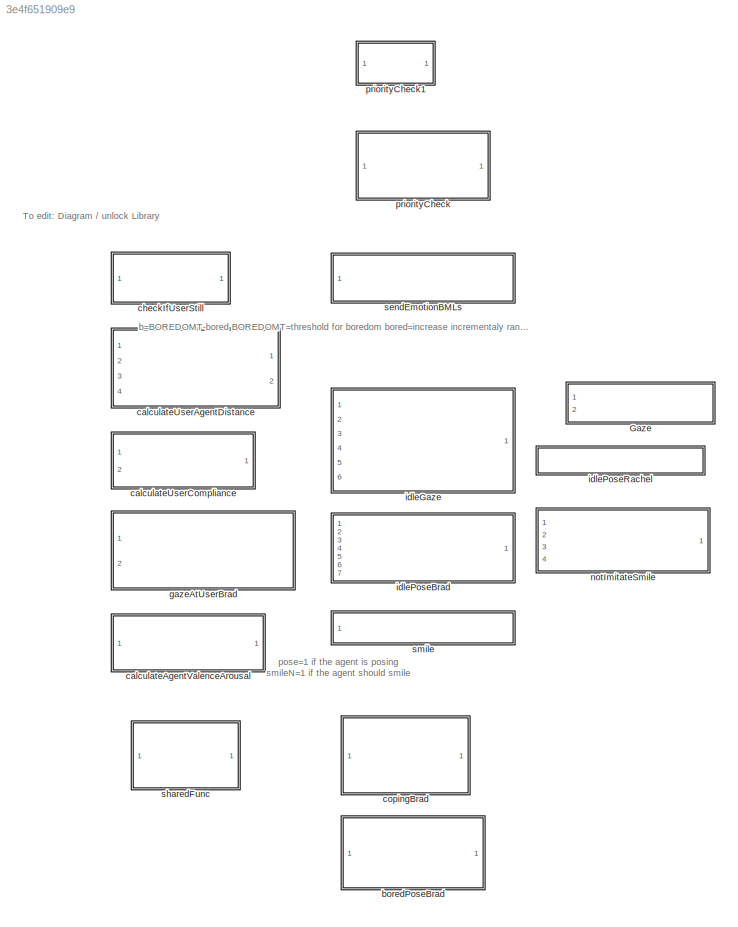
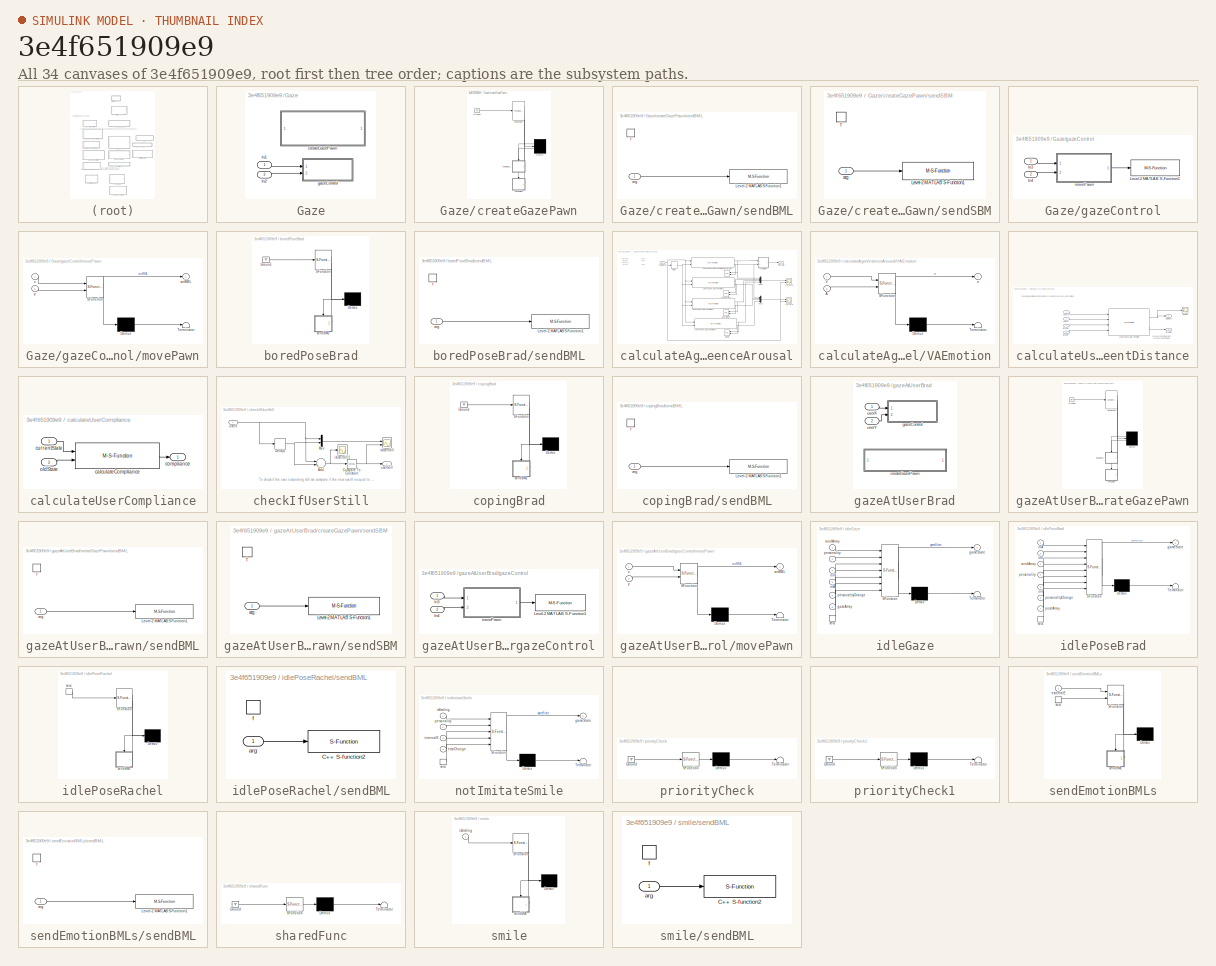
[diagram: thumbnail index - all 34 canvases of the model, root first then tree order]
MODEL slx_3e4f651909e9
KIND library
BLOCK [SubSystem] Gaze
  Ports = [2]
  RequestExecContextInheritance = off
BLOCK [Inport] Gaze/In1
  IconDisplay = Port number
BLOCK [Inport] Gaze/In2
  IconDisplay = Port number
  Port = 2
BLOCK [SubSystem] Gaze/createGazePawn
  ErrorFcn = Stateflow.Translate.translate
  PermitHierarchicalResolution = ExplicitOnly
  Ports = []
  RequestExecContextInheritance = off
  SFBlockType = Chart
  TreatAsAtomicUnit = on
BLOCK [Demux] Gaze/createGazePawn/ Demux 
  Outputs = 2
  Ports = [1, 2]
BLOCK [Ground] Gaze/createGazePawn/ Ground 
BLOCK [S-Function] Gaze/createGazePawn/ SFunction 
  EnableBusSupport = on
  FunctionName = sf_sfun
  PortCounts = [1 3]
  Ports = [1, 3]
  Tag = Stateflow S-Function lib_affectiveChar_behavior 13
BLOCK [SubSystem] Gaze/createGazePawn/sendBML
  Ports = [1, 0, 0, 1]
  PreDeleteFcn = Stateflow.SLINSF.SimulinkMan.removePreDeleteFcn
  RequestExecContextInheritance = off
  UndoDeleteFcn = Stateflow.SLINSF.SimulinkMan.restorePreDeleteFcn
BLOCK [M-S-Function] Gaze/createGazePawn/sendBML/Level-2 MATLAB S-Function1
  FunctionName = yarpSendText_sfun
  Parameters = '/sim/out/bml0', '/SB/in/bml'
  Ports = [1]
BLOCK [Inport] Gaze/createGazePawn/sendBML/arg
  IconDisplay = Port number
  OutDataTypeStr = double
  PortDimensions = [256 1]
  SignalType = real
  VarSizeSig = No
BLOCK [TriggerPort] Gaze/createGazePawn/sendBML/f
  CopyFcn = Stateflow.SLINSF.SimulinkMan.removeBlockPreDeleteFcn
  Ports = []
  PreDeleteFcn = Stateflow.SLINSF.SimulinkMan.unsafePredeleteFcn
  StatesWhenEnabling = held
  TriggerType = function-call
BLOCK [SubSystem] Gaze/createGazePawn/sendSBM
  Ports = [1, 0, 0, 1]
  PreDeleteFcn = Stateflow.SLINSF.SimulinkMan.removePreDeleteFcn
  RequestExecContextInheritance = off
  UndoDeleteFcn = Stateflow.SLINSF.SimulinkMan.restorePreDeleteFcn
BLOCK [M-S-Function] Gaze/createGazePawn/sendSBM/Level-2 MATLAB S-Function1
  FunctionName = yarpSendText_sfun
  Parameters = '/sim/out/smb0', '/SB/in/sbm'
  Ports = [1]
BLOCK [Inport] Gaze/createGazePawn/sendSBM/arg
  IconDisplay = Port number
  OutDataTypeStr = double
  PortDimensions = [256 1]
  SignalType = real
  VarSizeSig = No
BLOCK [TriggerPort] Gaze/createGazePawn/sendSBM/f
  CopyFcn = Stateflow.SLINSF.SimulinkMan.removeBlockPreDeleteFcn
  Ports = []
  PreDeleteFcn = Stateflow.SLINSF.SimulinkMan.unsafePredeleteFcn
  StatesWhenEnabling = held
  TriggerType = function-call
BLOCK [SubSystem] Gaze/gazeControl
  Ports = [2]
  RequestExecContextInheritance = off
BLOCK [Inport] Gaze/gazeControl/In3
  IconDisplay = Port number
BLOCK [Inport] Gaze/gazeControl/In4
  IconDisplay = Port number
  Port = 2
BLOCK [M-S-Function] Gaze/gazeControl/Level-2 MATLAB S-Function1
  FunctionName = yarpSendText_sfun
  Parameters = '/sim/out/smb1', '/SB/in/sbm'
  Ports = [1]
BLOCK [SubSystem] Gaze/gazeControl/movePawn
  ErrorFcn = Stateflow.Translate.translate
  PermitHierarchicalResolution = ExplicitOnly
  Ports = [2, 1]
  RequestExecContextInheritance = off
  SFBlockType = MATLAB Function
  TreatAsAtomicUnit = on
BLOCK [Demux] Gaze/gazeControl/movePawn/ Demux 
  Outputs = 1
  Ports = [1, 1]
BLOCK [S-Function] Gaze/gazeControl/movePawn/ SFunction 
  EnableBusSupport = on
  FunctionName = sf_sfun
  PortCounts = [2 2]
  Ports = [2, 2]
  Tag = Stateflow S-Function lib_affectiveChar_behavior 14
BLOCK [Terminator] Gaze/gazeControl/movePawn/ Terminator 
BLOCK [Outport] Gaze/gazeControl/movePawn/arrBML
  IconDisplay = Port number
BLOCK [Inport] Gaze/gazeControl/movePawn/x
  IconDisplay = Port number
BLOCK [Inport] Gaze/gazeControl/movePawn/y
  IconDisplay = Port number
  Port = 2
BLOCK [SubSystem] boredPoseBrad
  ErrorFcn = Stateflow.Translate.translate
  PermitHierarchicalResolution = ExplicitOnly
  Ports = []
  RequestExecContextInheritance = off
  SFBlockType = Chart
  TreatAsAtomicUnit = on
BLOCK [Demux] boredPoseBrad/ Demux 
  Outputs = 1
  Ports = [1, 1]
BLOCK [Ground] boredPoseBrad/ Ground 
BLOCK [S-Function] boredPoseBrad/ SFunction 
  EnableBusSupport = off
  FunctionName = sf_sfun
  PortCounts = [1 2]
  Ports = [1, 2]
  Tag = Stateflow S-Function lib_affectiveChar_behavior 2
BLOCK [SubSystem] boredPoseBrad/sendBML
  Ports = [1, 0, 0, 1]
  PreDeleteFcn = Stateflow.SLINSF.SimulinkMan.removePreDeleteFcn
  RequestExecContextInheritance = off
  UndoDeleteFcn = Stateflow.SLINSF.SimulinkMan.restorePreDeleteFcn
BLOCK [M-S-Function] boredPoseBrad/sendBML/Level-2 MATLAB S-Function1
  FunctionName = yarpSendText_sfun
  Parameters = '/sim/out/bml3', '/SB/in/bml'
  Ports = [1]
BLOCK [Inport] boredPoseBrad/sendBML/arg
  IconDisplay = Port number
  OutDataTypeStr = double
  PortDimensions = [256 1]
  SignalType = real
  VarSizeSig = No
BLOCK [TriggerPort] boredPoseBrad/sendBML/f
  CopyFcn = Stateflow.SLINSF.SimulinkMan.removeBlockPreDeleteFcn
  Ports = []
  PreDeleteFcn = Stateflow.SLINSF.SimulinkMan.unsafePredeleteFcn
  StatesWhenEnabling = held
  TriggerType = function-call
BLOCK [SubSystem] calculateAgentValenceArousal
  Ports = [1, 1]
  RequestExecContextInheritance = off
BLOCK [Scope] calculateAgentValenceArousal/A_E-I-N-S
  Floating = off
  NumInputPorts = 2
  Ports = [2]
  SaveName = ScopeData11
  ShowLegends = off
  YMax = 5~5
  YMin = -5~-5
BLOCK [Delay] calculateAgentValenceArousal/Delay
  DelayLength = 1
  InputPortMap = u0
  Ports = [1, 1]
  SampleTime = 1
BLOCK [Reference] calculateAgentValenceArousal/Extraversion  REF=simulink/Sinks/XY Graph
  Ports = [2]
  SourceBlock = simulink/Sinks/XY Graph
  SourceType = XY scope.
  st = -1
  xmax = 20
  xmin = -20
  ymax = 20
  ymin = -20
BLOCK [Reference] calculateAgentValenceArousal/Introversion  REF=simulink/Sinks/XY Graph
  Ports = [2]
  SourceBlock = simulink/Sinks/XY Graph
  SourceType = XY scope.
  st = -1
  xmax = 20
  xmin = -20
  ymax = 20
  ymin = -20
BLOCK [M-S-Function] calculateAgentValenceArousal/Level-2 MATLAB S-Function
  FunctionName = calculateVA_Extraversion_sfun
  Ports = [2, 2]
BLOCK [M-S-Function] calculateAgentValenceArousal/Level-2 MATLAB S-Function1
  FunctionName = calculateVA_Introversion_sfun
  Ports = [2, 2]
BLOCK [M-S-Function] calculateAgentValenceArousal/Level-2 MATLAB S-Function2
  FunctionName = calculateVA_Neuroticism_sfun
  Ports = [2, 2]
BLOCK [M-S-Function] calculateAgentValenceArousal/Level-2 MATLAB S-Function3
  FunctionName = calculateVA_Stable_sfun
  Ports = [2, 2]
BLOCK [Mux] calculateAgentValenceArousal/Mux1
  DisplayOption = bar
  Ports = [4, 1]
BLOCK [Mux] calculateAgentValenceArousal/Mux6
  DisplayOption = bar
  Ports = [4, 1]
BLOCK [Reference] calculateAgentValenceArousal/Neuroticism  REF=simulink/Sinks/XY Graph
  Ports = [2]
  SourceBlock = simulink/Sinks/XY Graph
  SourceType = XY scope.
  st = -1
  xmax = 20
  xmin = -20
  ymax = 20
  ymin = -20
BLOCK [Reference] calculateAgentValenceArousal/Stable  REF=simulink/Sinks/XY Graph
  Ports = [2]
  SourceBlock = simulink/Sinks/XY Graph
  SourceType = XY scope.
  st = -1
  xmax = 20
  xmin = -20
  ymax = 20
  ymin = -20
BLOCK [SubSystem] calculateAgentValenceArousal/VAEmotion
  ErrorFcn = Stateflow.Translate.translate
  PermitHierarchicalResolution = ExplicitOnly
  Ports = [2, 1]
  RequestExecContextInheritance = off
  SFBlockType = Truth Table
  ShowPortLabels = SignalName
  TreatAsAtomicUnit = on
BLOCK [Demux] calculateAgentValenceArousal/VAEmotion/ Demux 
  Outputs = 1
  Ports = [1, 1]
BLOCK [S-Function] calculateAgentValenceArousal/VAEmotion/ SFunction 
  EnableBusSupport = off
  FunctionName = sf_sfun
  PortCounts = [2 2]
  Ports = [2, 2]
  Tag = Stateflow S-Function lib_affectiveChar_behavior 8
BLOCK [Terminator] calculateAgentValenceArousal/VAEmotion/ Terminator 
BLOCK [Inport] calculateAgentValenceArousal/VAEmotion/A
  IconDisplay = Port number
  Port = 2
BLOCK [Inport] calculateAgentValenceArousal/VAEmotion/V
  IconDisplay = Port number
BLOCK [Outport] calculateAgentValenceArousal/VAEmotion/e
  IconDisplay = Port number
BLOCK [Scope] calculateAgentValenceArousal/V_E-I-N-S
  Floating = off
  NumInputPorts = 2
  Ports = [2]
  SaveName = ScopeData6
  ShowLegends = off
  YMax = 5~5
  YMin = -5~-5
BLOCK [Inport] calculateAgentValenceArousal/compliance
  IconDisplay = Port number
  OutDataTypeStr = double
  PortDimensions = 1
  SignalType = real
  VarSizeSig = No
BLOCK [Outport] calculateAgentValenceArousal/internalE
  IconDisplay = Port number
BLOCK [SubSystem] calculateUserAgentDistance
  Ports = [4, 2]
  RequestExecContextInheritance = off
BLOCK [M-S-Function] calculateUserAgentDistance/Level-2 MATLAB S-Function
  FunctionName = calculateDistance_sfun
  Ports = [4, 2]
BLOCK [Scope] calculateUserAgentDistance/Scope
  Floating = off
  NumInputPorts = 1
  Ports = [1]
  SaveName = ScopeData5
  ShowLegends = off
BLOCK [Outport] calculateUserAgentDistance/direction
  IconDisplay = Port number
  Port = 2
BLOCK [Outport] calculateUserAgentDistance/distance
  IconDisplay = Port number
BLOCK [Inport] calculateUserAgentDistance/targetX
  IconDisplay = Port number
  Port = 3
BLOCK [Inport] calculateUserAgentDistance/targetY
  IconDisplay = Port number
  Port = 4
BLOCK [Inport] calculateUserAgentDistance/userX
  IconDisplay = Port number
BLOCK [Inport] calculateUserAgentDistance/userY
  IconDisplay = Port number
  Port = 2
BLOCK [SubSystem] calculateUserCompliance
  Ports = [2, 1]
  RequestExecContextInheritance = off
BLOCK [M-S-Function] calculateUserCompliance/calculateCompliance
  FunctionName = calculateUserCompliance
  Ports = [2, 1]
BLOCK [Outport] calculateUserCompliance/compliance
  IconDisplay = Port number
BLOCK [Inport] calculateUserCompliance/currentState
  IconDisplay = Port number
BLOCK [Inport] calculateUserCompliance/oldState
  IconDisplay = Port number
  Port = 2
BLOCK [SubSystem] checkIfUserStill
  Ports = [1, 1]
  RequestExecContextInheritance = off
BLOCK [Sum] checkIfUserStill/Add
  InputSameDT = off
  Inputs = -+
  OutDataTypeStr = Inherit: Inherit via internal rule
  Ports = [2, 1]
  SaturateOnIntegerOverflow = off
BLOCK [Reference] checkIfUserStill/Compare To Constant  REF=simulink/Logic and Bit
Operations/Compare
To Constant
  OutDataTypeStr = boolean
  Ports = [1, 1]
  SourceBlock = simulink/Logic and Bit\nOperations/Compare\nTo Constant
  SourceType = Compare To Constant
  ZeroCross = on
  const = 0
  relop = ==
BLOCK [Delay] checkIfUserStill/Delay1
  InputPortMap = u0
  Ports = [1, 1]
BLOCK [Mux] checkIfUserStill/Mux
  DisplayOption = bar
  Inputs = 2
  Ports = [2, 1]
BLOCK [Scope] checkIfUserStill/isUserStill
  Floating = off
  NumInputPorts = 2
  Ports = [2]
  SaveName = ScopeData4
  ShowLegends = off
  TimeRange = 60
  YMax = 60~1
  YMin = 0~0
BLOCK [Scope] checkIfUserStill/isUserStill1
  Floating = off
  NumInputPorts = 1
  Ports = [1]
  ShowLegends = off
  TimeRange = 60
  YMax = 60
  YMin = 0
BLOCK [Outport] checkIfUserStill/userStill
  IconDisplay = Port number
BLOCK [Inport] checkIfUserStill/userX
  IconDisplay = Port number
BLOCK [SubSystem] copingBrad
  ErrorFcn = Stateflow.Translate.translate
  PermitHierarchicalResolution = ExplicitOnly
  Ports = []
  RequestExecContextInheritance = off
  SFBlockType = Chart
  TreatAsAtomicUnit = on
BLOCK [Demux] copingBrad/ Demux 
  Outputs = 1
  Ports = [1, 1]
BLOCK [Ground] copingBrad/ Ground 
BLOCK [S-Function] copingBrad/ SFunction 
  EnableBusSupport = off
  FunctionName = sf_sfun
  PortCounts = [1 2]
  Ports = [1, 2]
  Tag = Stateflow S-Function lib_affectiveChar_behavior 7
BLOCK [SubSystem] copingBrad/sendBML
  Ports = [1, 0, 0, 1]
  PreDeleteFcn = Stateflow.SLINSF.SimulinkMan.removePreDeleteFcn
  RequestExecContextInheritance = off
  UndoDeleteFcn = Stateflow.SLINSF.SimulinkMan.restorePreDeleteFcn
BLOCK [M-S-Function] copingBrad/sendBML/Level-2 MATLAB S-Function1
  FunctionName = yarpSendText_sfun
  Parameters = '/sim/out/bml1', '/SB/in/bml'
  Ports = [1]
BLOCK [Inport] copingBrad/sendBML/arg
  IconDisplay = Port number
  OutDataTypeStr = double
  PortDimensions = [256 1]
  SignalType = real
  VarSizeSig = No
BLOCK [TriggerPort] copingBrad/sendBML/f
  CopyFcn = Stateflow.SLINSF.SimulinkMan.removeBlockPreDeleteFcn
  Ports = []
  PreDeleteFcn = Stateflow.SLINSF.SimulinkMan.unsafePredeleteFcn
  StatesWhenEnabling = held
  TriggerType = function-call
BLOCK [SubSystem] gazeAtUserBrad
  Ports = [2]
  RequestExecContextInheritance = off
BLOCK [SubSystem] gazeAtUserBrad/createGazePawn
  ErrorFcn = Stateflow.Translate.translate
  PermitHierarchicalResolution = ExplicitOnly
  Ports = []
  RequestExecContextInheritance = off
  SFBlockType = Chart
  TreatAsAtomicUnit = on
BLOCK [Demux] gazeAtUserBrad/createGazePawn/ Demux 
  Outputs = 2
  Ports = [1, 2]
BLOCK [Ground] gazeAtUserBrad/createGazePawn/ Ground 
BLOCK [S-Function] gazeAtUserBrad/createGazePawn/ SFunction 
  EnableBusSupport = off
  FunctionName = sf_sfun
  PortCounts = [1 3]
  Ports = [1, 3]
  Tag = Stateflow S-Function lib_affectiveChar_behavior 3
BLOCK [SubSystem] gazeAtUserBrad/createGazePawn/sendBML
  Ports = [1, 0, 0, 1]
  PreDeleteFcn = Stateflow.SLINSF.SimulinkMan.removePreDeleteFcn
  RequestExecContextInheritance = off
  UndoDeleteFcn = Stateflow.SLINSF.SimulinkMan.restorePreDeleteFcn
BLOCK [M-S-Function] gazeAtUserBrad/createGazePawn/sendBML/Level-2 MATLAB S-Function1
  FunctionName = yarpSendText_sfun
  Parameters = '/sim/out/bml', '/SB/in/bml'
  Ports = [1]
BLOCK [Inport] gazeAtUserBrad/createGazePawn/sendBML/arg
  IconDisplay = Port number
  OutDataTypeStr = double
  PortDimensions = [256 1]
  SignalType = real
  VarSizeSig = No
BLOCK [TriggerPort] gazeAtUserBrad/createGazePawn/sendBML/f
  CopyFcn = Stateflow.SLINSF.SimulinkMan.removeBlockPreDeleteFcn
  Ports = []
  PreDeleteFcn = Stateflow.SLINSF.SimulinkMan.unsafePredeleteFcn
  StatesWhenEnabling = held
  TriggerType = function-call
BLOCK [SubSystem] gazeAtUserBrad/createGazePawn/sendSBM
  Ports = [1, 0, 0, 1]
  PreDeleteFcn = Stateflow.SLINSF.SimulinkMan.removePreDeleteFcn
  RequestExecContextInheritance = off
  UndoDeleteFcn = Stateflow.SLINSF.SimulinkMan.restorePreDeleteFcn
BLOCK [M-S-Function] gazeAtUserBrad/createGazePawn/sendSBM/Level-2 MATLAB S-Function1
  FunctionName = yarpSendText_sfun
  Parameters = '/sim/out/smb0', '/SB/in/sbm'
  Ports = [1]
BLOCK [Inport] gazeAtUserBrad/createGazePawn/sendSBM/arg
  IconDisplay = Port number
  OutDataTypeStr = double
  PortDimensions = [256 1]
  SignalType = real
  VarSizeSig = No
BLOCK [TriggerPort] gazeAtUserBrad/createGazePawn/sendSBM/f
  CopyFcn = Stateflow.SLINSF.SimulinkMan.removeBlockPreDeleteFcn
  Ports = []
  PreDeleteFcn = Stateflow.SLINSF.SimulinkMan.unsafePredeleteFcn
  StatesWhenEnabling = held
  TriggerType = function-call
BLOCK [SubSystem] gazeAtUserBrad/gazeControl
  Ports = [2]
  RequestExecContextInheritance = off
BLOCK [Inport] gazeAtUserBrad/gazeControl/In3
  IconDisplay = Port number
BLOCK [Inport] gazeAtUserBrad/gazeControl/In4
  IconDisplay = Port number
  Port = 2
BLOCK [M-S-Function] gazeAtUserBrad/gazeControl/Level-2 MATLAB S-Function1
  FunctionName = yarpSendText_sfun
  Parameters = '/sim/out/smb', '/SB/in/sbm'
  Ports = [1]
BLOCK [SubSystem] gazeAtUserBrad/gazeControl/movePawn
  ErrorFcn = Stateflow.Translate.translate
  PermitHierarchicalResolution = ExplicitOnly
  Ports = [2, 1]
  RequestExecContextInheritance = off
  SFBlockType = MATLAB Function
  TreatAsAtomicUnit = on
BLOCK [Demux] gazeAtUserBrad/gazeControl/movePawn/ Demux 
  Outputs = 1
  Ports = [1, 1]
BLOCK [S-Function] gazeAtUserBrad/gazeControl/movePawn/ SFunction 
  EnableBusSupport = off
  FunctionName = sf_sfun
  PortCounts = [2 2]
  Ports = [2, 2]
  Tag = Stateflow S-Function lib_affectiveChar_behavior 6
BLOCK [Terminator] gazeAtUserBrad/gazeControl/movePawn/ Terminator 
BLOCK [Outport] gazeAtUserBrad/gazeControl/movePawn/arrBML
  IconDisplay = Port number
BLOCK [Inport] gazeAtUserBrad/gazeControl/movePawn/x
  IconDisplay = Port number
BLOCK [Inport] gazeAtUserBrad/gazeControl/movePawn/y
  IconDisplay = Port number
  Port = 2
BLOCK [Inport] gazeAtUserBrad/userX
  IconDisplay = Port number
BLOCK [Inport] gazeAtUserBrad/userY
  IconDisplay = Port number
  Port = 2
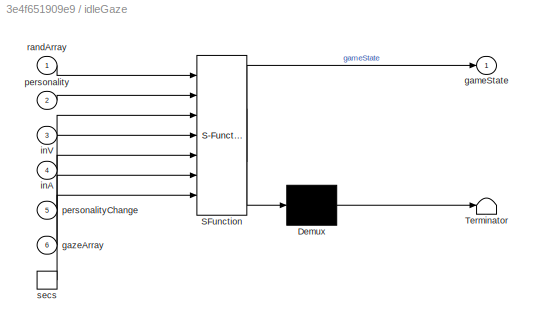
BLOCK [SubSystem] idleGaze
  ErrorFcn = Stateflow.Translate.translate
  PermitHierarchicalResolution = ExplicitOnly
  Ports = [6, 1, 0, 1]
  RequestExecContextInheritance = off
  SFBlockType = Chart
  TreatAsAtomicUnit = on
BLOCK [Demux] idleGaze/ Demux 
  Outputs = 1
  Ports = [1, 1]
BLOCK [S-Function] idleGaze/ SFunction 
  EnableBusSupport = off
  FunctionName = sf_sfun
  PortCounts = [7 2]
  Ports = [7, 2]
  Tag = Stateflow S-Function lib_affectiveChar_behavior 9
BLOCK [Terminator] idleGaze/ Terminator 
BLOCK [Outport] idleGaze/gameState
  IconDisplay = Port number
BLOCK [Inport] idleGaze/gazeArray
  IconDisplay = Port number
  Port = 6
BLOCK [Inport] idleGaze/inA
  IconDisplay = Port number
  Port = 4
BLOCK [Inport] idleGaze/inV
  IconDisplay = Port number
  Port = 3
BLOCK [Inport] idleGaze/personality
  IconDisplay = Port number
  Port = 2
BLOCK [Inport] idleGaze/personalityChange
  IconDisplay = Port number
  Port = 5
BLOCK [Inport] idleGaze/randArray
  IconDisplay = Port number
BLOCK [TriggerPort] idleGaze/secs
  Ports = [0, 1]
  ShowOutputPort = on
  StatesWhenEnabling = held
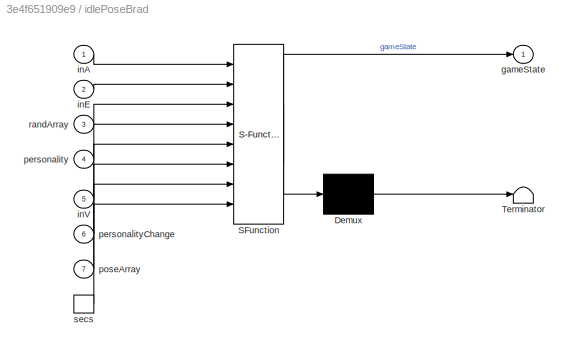
BLOCK [SubSystem] idlePoseBrad
  ErrorFcn = Stateflow.Translate.translate
  PermitHierarchicalResolution = ExplicitOnly
  Ports = [7, 1, 0, 1]
  RequestExecContextInheritance = off
  SFBlockType = Chart
  TreatAsAtomicUnit = on
BLOCK [Demux] idlePoseBrad/ Demux 
  Outputs = 1
  Ports = [1, 1]
BLOCK [S-Function] idlePoseBrad/ SFunction 
  EnableBusSupport = off
  FunctionName = sf_sfun
  PortCounts = [8 2]
  Ports = [8, 2]
  Tag = Stateflow S-Function lib_affectiveChar_behavior 1
BLOCK [Terminator] idlePoseBrad/ Terminator 
BLOCK [Outport] idlePoseBrad/gameState
  IconDisplay = Port number
BLOCK [Inport] idlePoseBrad/inA
  IconDisplay = Port number
BLOCK [Inport] idlePoseBrad/inE
  IconDisplay = Port number
  Port = 2
BLOCK [Inport] idlePoseBrad/inV
  IconDisplay = Port number
  Port = 5
BLOCK [Inport] idlePoseBrad/personality
  IconDisplay = Port number
  Port = 4
BLOCK [Inport] idlePoseBrad/personalityChange
  IconDisplay = Port number
  Port = 6
BLOCK [Inport] idlePoseBrad/poseArray
  IconDisplay = Port number
  Port = 7
BLOCK [Inport] idlePoseBrad/randArray
  IconDisplay = Port number
  Port = 3
BLOCK [TriggerPort] idlePoseBrad/secs
  Ports = [0, 1]
  ShowOutputPort = on
  StatesWhenEnabling = held
BLOCK [SubSystem] idlePoseRachel
  ErrorFcn = Stateflow.Translate.translate
  PermitHierarchicalResolution = ExplicitOnly
  Ports = [0, 0, 0, 1]
  RequestExecContextInheritance = off
  SFBlockType = Chart
  TreatAsAtomicUnit = on
BLOCK [Demux] idlePoseRachel/ Demux 
  Outputs = 1
  Ports = [1, 1]
BLOCK [S-Function] idlePoseRachel/ SFunction 
  EnableBusSupport = off
  FunctionName = sf_sfun
  PortCounts = [1 2]
  Ports = [1, 2]
  Tag = Stateflow S-Function lib_affectiveChar_behavior 10
BLOCK [TriggerPort] idlePoseRachel/secs
  Ports = [0, 1]
  ShowOutputPort = on
  StatesWhenEnabling = held
BLOCK [SubSystem] idlePoseRachel/sendBML
  Ports = [1, 0, 0, 1]
  PreDeleteFcn = Stateflow.SLINSF.SimulinkMan.removePreDeleteFcn
  RequestExecContextInheritance = off
  UndoDeleteFcn = Stateflow.SLINSF.SimulinkMan.restorePreDeleteFcn
BLOCK [S-Function] idlePoseRachel/sendBML/C++ S-function2
  EnableBusSupport = off
  FunctionName = yarpSendText_sfun
  Parameters = '/sim/out/bml2', '/SB/in/bml'
  Ports = [1]
BLOCK [Inport] idlePoseRachel/sendBML/arg
  IconDisplay = Port number
  OutDataTypeStr = double
  PortDimensions = [256 1]
  SignalType = real
  VarSizeSig = No
BLOCK [TriggerPort] idlePoseRachel/sendBML/f
  CopyFcn = Stateflow.SLINSF.SimulinkMan.removeBlockPreDeleteFcn
  Ports = []
  PreDeleteFcn = Stateflow.SLINSF.SimulinkMan.unsafePredeleteFcn
  StatesWhenEnabling = held
  TriggerType = function-call
BLOCK [SubSystem] notImitateSmile
  ErrorFcn = Stateflow.Translate.translate
  PermitHierarchicalResolution = ExplicitOnly
  Ports = [4, 1, 0, 1]
  RequestExecContextInheritance = off
  SFBlockType = Chart
  TreatAsAtomicUnit = on
BLOCK [Demux] notImitateSmile/ Demux 
  Outputs = 1
  Ports = [1, 1]
BLOCK [S-Function] notImitateSmile/ SFunction 
  EnableBusSupport = off
  FunctionName = sf_sfun
  PortCounts = [5 2]
  Ports = [5, 2]
  Tag = Stateflow S-Function lib_affectiveChar_behavior 11
BLOCK [Terminator] notImitateSmile/ Terminator 
BLOCK [Inport] notImitateSmile/emoChange
  IconDisplay = Port number
  Port = 4
BLOCK [Outport] notImitateSmile/gameState
  IconDisplay = Port number
BLOCK [Inport] notImitateSmile/internalE
  IconDisplay = Port number
  Port = 3
BLOCK [Inport] notImitateSmile/isSmiling
  IconDisplay = Port number
BLOCK [Inport] notImitateSmile/personality
  IconDisplay = Port number
  Port = 2
BLOCK [TriggerPort] notImitateSmile/secs
  Ports = [0, 1]
  ShowOutputPort = on
  StatesWhenEnabling = held
BLOCK [SubSystem] priorityCheck
  ErrorFcn = Stateflow.Translate.translate
  PermitHierarchicalResolution = ExplicitOnly
  Ports = []
  RequestExecContextInheritance = off
  SFBlockType = Chart
  TreatAsAtomicUnit = on
BLOCK [Demux] priorityCheck/ Demux 
  Outputs = 1
  Ports = [1, 1]
BLOCK [Ground] priorityCheck/ Ground 
BLOCK [S-Function] priorityCheck/ SFunction 
  EnableBusSupport = off
  FunctionName = sf_sfun
  PortCounts = [1 1]
  Ports = [1, 1]
  Tag = Stateflow S-Function lib_affectiveChar_behavior 16
BLOCK [Terminator] priorityCheck/ Terminator 
BLOCK [SubSystem] priorityCheck1
  AncestorBlock = lib_affectiveChar_behavior/priorityCheck
  ErrorFcn = Stateflow.Translate.translate
  PermitHierarchicalResolution = ExplicitOnly
  Ports = []
  RequestExecContextInheritance = off
  SFBlockType = Chart
  TreatAsAtomicUnit = on
BLOCK [Demux] priorityCheck1/ Demux 
  Outputs = 1
  Ports = [1, 1]
BLOCK [Ground] priorityCheck1/ Ground 
BLOCK [S-Function] priorityCheck1/ SFunction 
  EnableBusSupport = off
  FunctionName = sf_sfun
  PortCounts = [1 1]
  Ports = [1, 1]
  Tag = Stateflow S-Function lib_affectiveChar_behavior 12
BLOCK [Terminator] priorityCheck1/ Terminator 
BLOCK [SubSystem] sendEmotionBMLs
  ErrorFcn = Stateflow.Translate.translate
  PermitHierarchicalResolution = ExplicitOnly
  Ports = [1, 0, 0, 1]
  RequestExecContextInheritance = off
  SFBlockType = Chart
  TreatAsAtomicUnit = on
BLOCK [Demux] sendEmotionBMLs/ Demux 
  Outputs = 1
  Ports = [1, 1]
BLOCK [S-Function] sendEmotionBMLs/ SFunction 
  EnableBusSupport = off
  FunctionName = sf_sfun
  PortCounts = [2 2]
  Ports = [2, 2]
  Tag = Stateflow S-Function lib_affectiveChar_behavior 5
BLOCK [Inport] sendEmotionBMLs/externalE
  IconDisplay = Port number
BLOCK [TriggerPort] sendEmotionBMLs/secs
  Ports = [0, 1]
  ShowOutputPort = on
  StatesWhenEnabling = held
BLOCK [SubSystem] sendEmotionBMLs/sendBML
  Ports = [1, 0, 0, 1]
  PreDeleteFcn = Stateflow.SLINSF.SimulinkMan.removePreDeleteFcn
  RequestExecContextInheritance = off
  UndoDeleteFcn = Stateflow.SLINSF.SimulinkMan.restorePreDeleteFcn
BLOCK [M-S-Function] sendEmotionBMLs/sendBML/Level-2 MATLAB S-Function1
  FunctionName = yarpSendText_sfun
  Parameters = '/sim/out/bml', '/SB/in/bml'
  Ports = [1]
BLOCK [Inport] sendEmotionBMLs/sendBML/arg
  IconDisplay = Port number
  OutDataTypeStr = double
  PortDimensions = [256 1]
  SignalType = real
  VarSizeSig = No
BLOCK [TriggerPort] sendEmotionBMLs/sendBML/f
  CopyFcn = Stateflow.SLINSF.SimulinkMan.removeBlockPreDeleteFcn
  Ports = []
  PreDeleteFcn = Stateflow.SLINSF.SimulinkMan.unsafePredeleteFcn
  StatesWhenEnabling = held
  TriggerType = function-call
BLOCK [SubSystem] sharedFunc
  CopyFcn = set_param(gcbh, 'DSMNames', '', 'DSMValues', '', 'CopyFcn', '')
  ErrorFcn = Stateflow.Translate.translate
  PermitHierarchicalResolution = ExplicitOnly
  Ports = []
  RequestExecContextInheritance = off
  SFBlockType = Chart
  TreatAsAtomicUnit = on
BLOCK [Demux] sharedFunc/ Demux 
  Outputs = 1
  Ports = [1, 1]
BLOCK [Ground] sharedFunc/ Ground 
BLOCK [S-Function] sharedFunc/ SFunction 
  EnableBusSupport = off
  FunctionName = sf_sfun
  PortCounts = [1 1]
  Ports = [1, 1]
  Tag = Stateflow S-Function lib_affectiveChar_behavior 59
BLOCK [Terminator] sharedFunc/ Terminator 
BLOCK [SubSystem] smile
  ErrorFcn = Stateflow.Translate.translate
  PermitHierarchicalResolution = ExplicitOnly
  Ports = [1]
  RequestExecContextInheritance = off
  SFBlockType = Chart
  TreatAsAtomicUnit = on
BLOCK [Demux] smile/ Demux 
  Outputs = 1
  Ports = [1, 1]
BLOCK [S-Function] smile/ SFunction 
  EnableBusSupport = off
  FunctionName = sf_sfun
  PortCounts = [1 2]
  Ports = [1, 2]
  Tag = Stateflow S-Function lib_affectiveChar_behavior 4
BLOCK [Inport] smile/isSmiling
  IconDisplay = Port number
BLOCK [SubSystem] smile/sendBML
  Ports = [1, 0, 0, 1]
  PreDeleteFcn = Stateflow.SLINSF.SimulinkMan.removePreDeleteFcn
  RequestExecContextInheritance = off
  UndoDeleteFcn = Stateflow.SLINSF.SimulinkMan.restorePreDeleteFcn
BLOCK [S-Function] smile/sendBML/C++ S-function2
  EnableBusSupport = off
  FunctionName = yarpSendText_sfun
  Parameters = '/sim/out/bml3', '/SB/in/bml'
  Ports = [1]
BLOCK [Inport] smile/sendBML/arg
  IconDisplay = Port number
  OutDataTypeStr = double
  PortDimensions = [256 1]
  SignalType = real
  VarSizeSig = No
BLOCK [TriggerPort] smile/sendBML/f
  CopyFcn = Stateflow.SLINSF.SimulinkMan.removeBlockPreDeleteFcn
  Ports = []
  PreDeleteFcn = Stateflow.SLINSF.SimulinkMan.unsafePredeleteFcn
  StatesWhenEnabling = held
  TriggerType = function-call
ANNOTATION (root): To edit: Diagram / unlock Library
ANNOTATION (root): b=BOREDOMT-bored BOREDOMT=threshold for boredom bored=increase incrementaly randomP=randi(1,b);
ANNOTATION (root): pose=1 if the agent is posing smileN=1 if the agent should smile
ANNOTATION calculateAgentValenceArousal: Ve = Vs = + Vi = Vn= - Ae = An = + Ai = As = -
ANNOTATION calculateAgentValenceArousal: Vs = 0 Vi = 0 Ai =0
ANNOTATION calculateUserAgentDistance: One goal is specified:user in target ,hard-coded here to (10,10). User position is read from the sensor. The error is the distance between the two points. If we have more goals we can have a database with columns: goal, Status,Priority and Difference which is calculated here
ANNOTATION calculateUserAgentDistance: xd>0 : user is moving to right xd<0: user is moving to left
ANNOTATION checkIfUserStill: To check if the user is standing still we compare if the new userX is equal to previous one.
LINE Gaze/In1:1 -> Gaze/gazeControl:1
LINE Gaze/In2:1 -> Gaze/gazeControl:2
LINE Gaze/gazeControl/In3:1 -> Gaze/gazeControl/movePawn:1
LINE Gaze/gazeControl/In4:1 -> Gaze/gazeControl/movePawn:2
LINE Gaze/gazeControl/movePawn:1 -> Gaze/gazeControl/Level-2 MATLAB S-Function1:1
NET calculateAgentValenceArousal/Delay:1 -> calculateAgentValenceArousal/Level-2 MATLAB S-Function1:2, calculateAgentValenceArousal/Level-2 MATLAB S-Function2:2, calculateAgentValenceArousal/Level-2 MATLAB S-Function3:2, calculateAgentValenceArousal/Level-2 MATLAB S-Function:2
NET calculateAgentValenceArousal/Level-2 MATLAB S-Function1:1 -> calculateAgentValenceArousal/Introversion:1, calculateAgentValenceArousal/Mux6:2
NET calculateAgentValenceArousal/Level-2 MATLAB S-Function1:2 -> calculateAgentValenceArousal/Introversion:2, calculateAgentValenceArousal/Mux1:2
NET calculateAgentValenceArousal/Level-2 MATLAB S-Function2:1 -> calculateAgentValenceArousal/Mux6:3, calculateAgentValenceArousal/Neuroticism:1
NET calculateAgentValenceArousal/Level-2 MATLAB S-Function2:2 -> calculateAgentValenceArousal/Mux1:3, calculateAgentValenceArousal/Neuroticism:2
NET calculateAgentValenceArousal/Level-2 MATLAB S-Function3:1 -> calculateAgentValenceArousal/Mux6:4, calculateAgentValenceArousal/Stable:1
NET calculateAgentValenceArousal/Level-2 MATLAB S-Function3:2 -> calculateAgentValenceArousal/Mux1:4, calculateAgentValenceArousal/Stable:2
NET calculateAgentValenceArousal/Level-2 MATLAB S-Function:1 -> calculateAgentValenceArousal/Extraversion:1, calculateAgentValenceArousal/Mux6:1, calculateAgentValenceArousal/VAEmotion:1
NET calculateAgentValenceArousal/Level-2 MATLAB S-Function:2 -> calculateAgentValenceArousal/Extraversion:2, calculateAgentValenceArousal/Mux1:1, calculateAgentValenceArousal/VAEmotion:2
LINE calculateAgentValenceArousal/Mux1:1 -> calculateAgentValenceArousal/A_E-I-N-S:1
LINE calculateAgentValenceArousal/Mux6:1 -> calculateAgentValenceArousal/V_E-I-N-S:1
LINE calculateAgentValenceArousal/VAEmotion:1 -> calculateAgentValenceArousal/internalE:1
NET calculateAgentValenceArousal/compliance:1 -> calculateAgentValenceArousal/A_E-I-N-S:2, calculateAgentValenceArousal/Delay:1, calculateAgentValenceArousal/Level-2 MATLAB S-Function1:1, calculateAgentValenceArousal/Level-2 MATLAB S-Function2:1, calculateAgentValenceArousal/Level-2 MATLAB S-Function3:1, calculateAgentValenceArousal/Level-2 MATLAB S-Function:1, calculateAgentValenceArousal/V_E-I-N-S:2
NET calculateUserAgentDistance/Level-2 MATLAB S-Function:1 -> calculateUserAgentDistance/Scope:1, calculateUserAgentDistance/distance:1
LINE calculateUserAgentDistance/Level-2 MATLAB S-Function:2 -> calculateUserAgentDistance/direction:1
LINE calculateUserAgentDistance/targetX:1 -> calculateUserAgentDistance/Level-2 MATLAB S-Function:3
LINE calculateUserAgentDistance/targetY:1 -> calculateUserAgentDistance/Level-2 MATLAB S-Function:4
LINE calculateUserAgentDistance/userX:1 -> calculateUserAgentDistance/Level-2 MATLAB S-Function:1
LINE calculateUserAgentDistance/userY:1 -> calculateUserAgentDistance/Level-2 MATLAB S-Function:2
LINE calculateUserCompliance/calculateCompliance:1 -> calculateUserCompliance/compliance:1
LINE calculateUserCompliance/currentState:1 -> calculateUserCompliance/calculateCompliance:1
LINE calculateUserCompliance/oldState:1 -> calculateUserCompliance/calculateCompliance:2
NET checkIfUserStill/Add:1 -> checkIfUserStill/Compare To Constant:1, checkIfUserStill/isUserStill1:1
NET checkIfUserStill/Compare To Constant:1 -> checkIfUserStill/isUserStill:2, checkIfUserStill/userStill:1
NET checkIfUserStill/Delay1:1 -> checkIfUserStill/Add:2, checkIfUserStill/Mux:2
LINE checkIfUserStill/Mux:1 -> checkIfUserStill/isUserStill:1
NET checkIfUserStill/userX:1 -> checkIfUserStill/Add:1, checkIfUserStill/Delay1:1, checkIfUserStill/Mux:1
LINE gazeAtUserBrad/gazeControl/In3:1 -> gazeAtUserBrad/gazeControl/movePawn:1
LINE gazeAtUserBrad/gazeControl/In4:1 -> gazeAtUserBrad/gazeControl/movePawn:2
LINE gazeAtUserBrad/gazeControl/movePawn:1 -> gazeAtUserBrad/gazeControl/Level-2 MATLAB S-Function1:1
LINE gazeAtUserBrad/userX:1 -> gazeAtUserBrad/gazeControl:1
LINE gazeAtUserBrad/userY:1 -> gazeAtUserBrad/gazeControl:2
note: NET lines group one-source signal fan-out (src -> all destinations, sorted); 1:1 wires keep LINE
